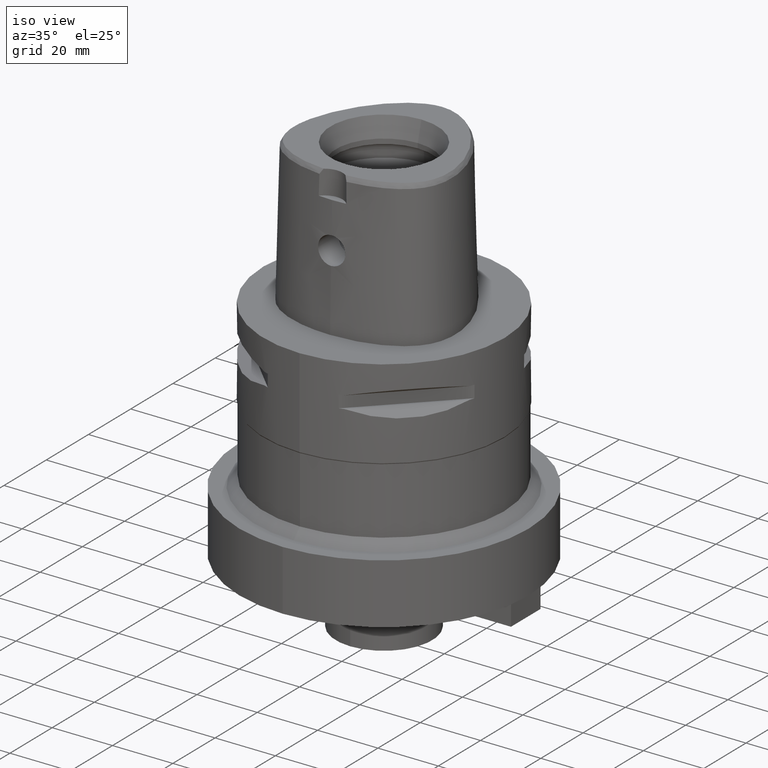
[diagram: clean part render]
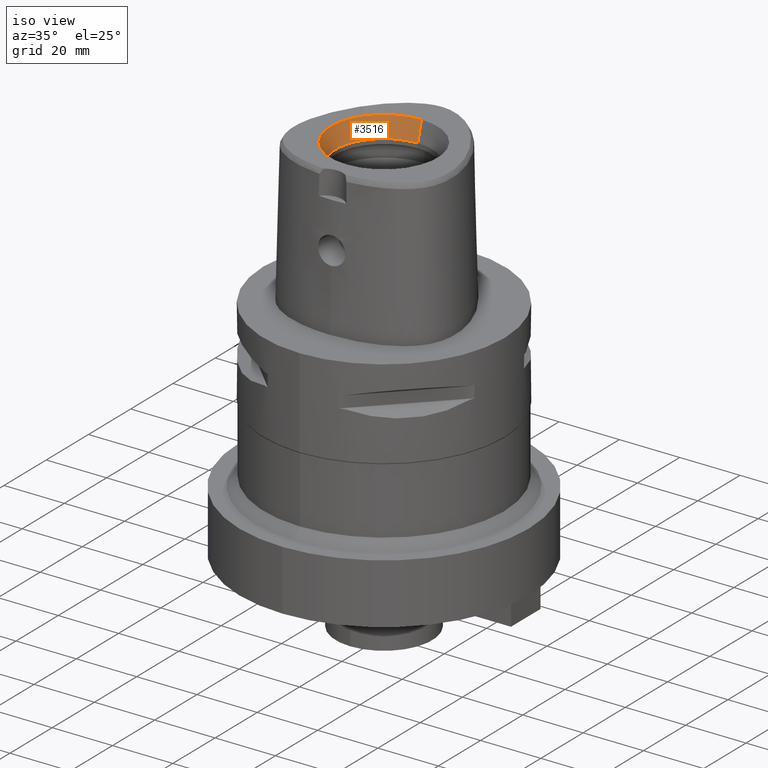
[diagram: same view with one face highlighted and labeled with its STEP entity id]
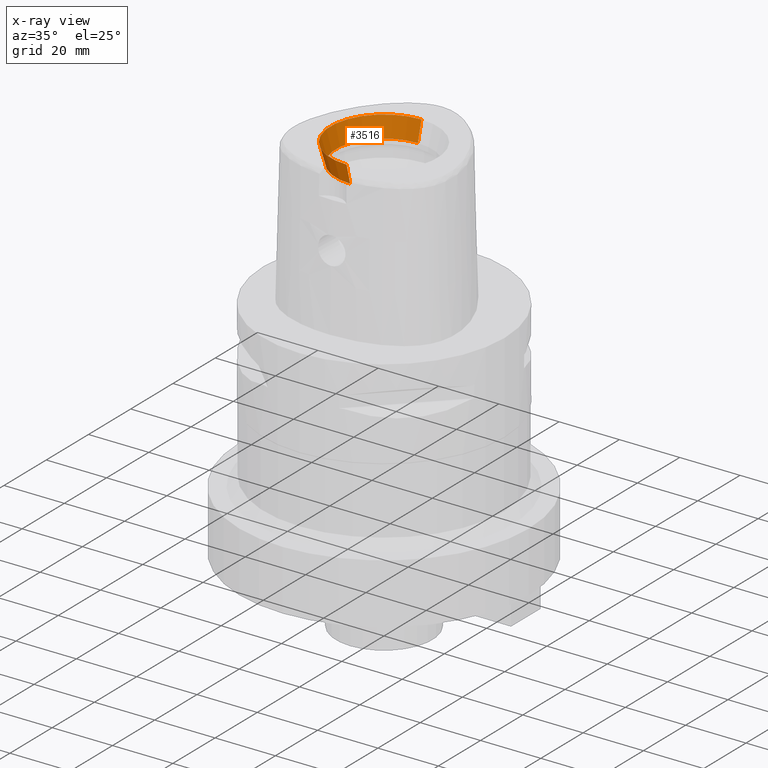
[diagram: x-ray of the same camera — body ghosted, the highlighted face saturated]
A machine part, iso view. The second image highlights one B-rep face of the part: STEP entity #3516.
The next image is the same camera in x-ray: the body ghosted, the highlighted face saturated — about 0% of this face is hidden behind the body in this view.
In plain terms, the highlighted conical surface has half-angle 15 deg.
Its self-contained STEP definition (entity closure, byte-faithful):
#114=CARTESIAN_POINT('',(0.E0,0.E0,4.8E1));
#115=DIRECTION('',(0.E0,0.E0,1.E0));
#116=DIRECTION('',(0.E0,1.E0,0.E0));
#117=AXIS2_PLACEMENT_3D('',#114,#115,#116);
#1248=CARTESIAN_POINT('',(0.E0,0.E0,4.16E1));
#1249=DIRECTION('',(0.E0,0.E0,1.E0));
#1250=DIRECTION('',(0.E0,1.E0,0.E0));
#1251=AXIS2_PLACEMENT_3D('',#1248,#1249,#1250);
#1256=DIRECTION('',(0.E0,-2.588190451026E-1,9.659258262891E-1));
#1257=VECTOR('',#1256,6.625767554625E0);
#1258=CARTESIAN_POINT('',(0.E0,-1.6E1,4.16E1));
#1259=LINE('',#1258,#1257);
#1271=DIRECTION('',(0.E0,2.588190451026E-1,9.659258262891E-1));
#1272=VECTOR('',#1271,6.625767554625E0);
#1273=CARTESIAN_POINT('',(0.E0,1.6E1,4.16E1));
#1274=LINE('',#1273,#1272);
#1723=CARTESIAN_POINT('',(0.E0,1.771487483156E1,4.8E1));
#1724=CARTESIAN_POINT('',(0.E0,-1.771487483156E1,4.8E1));
#1725=VERTEX_POINT('',#1723);
#1726=VERTEX_POINT('',#1724);
#1905=CARTESIAN_POINT('',(0.E0,-1.6E1,4.16E1));
#1906=VERTEX_POINT('',#1905);
#1907=CARTESIAN_POINT('',(0.E0,1.6E1,4.16E1));
#1908=VERTEX_POINT('',#1907);
#3503=CARTESIAN_POINT('',(0.E0,0.E0,4.48E1));
#3504=DIRECTION('',(0.E0,0.E0,1.E0));
#3505=DIRECTION('',(0.E0,1.E0,0.E0));
#3506=AXIS2_PLACEMENT_3D('',#3503,#3504,#3505);
#3507=CONICAL_SURFACE('',#3506,1.685743741578E1,1.5E1);
#3508=ORIENTED_EDGE('',*,*,#1938,.F.);
#3510=ORIENTED_EDGE('',*,*,#3509,.F.);
#3511=ORIENTED_EDGE('',*,*,#3496,.T.);
#3513=ORIENTED_EDGE('',*,*,#3512,.T.);
#3514=EDGE_LOOP('',(#3508,#3510,#3511,#3513));
#3515=FACE_OUTER_BOUND('',#3514,.F.);
#118=CIRCLE('',#117,1.771487483156E1);
#1252=CIRCLE('',#1251,1.6E1);
#1938=EDGE_CURVE('',#1725,#1726,#118,.T.);
#3496=EDGE_CURVE('',#1908,#1906,#1252,.T.);
#3509=EDGE_CURVE('',#1908,#1725,#1274,.T.);
#3512=EDGE_CURVE('',#1906,#1726,#1259,.T.);
#3516=ADVANCED_FACE('',(#3515),#3507,.F.);